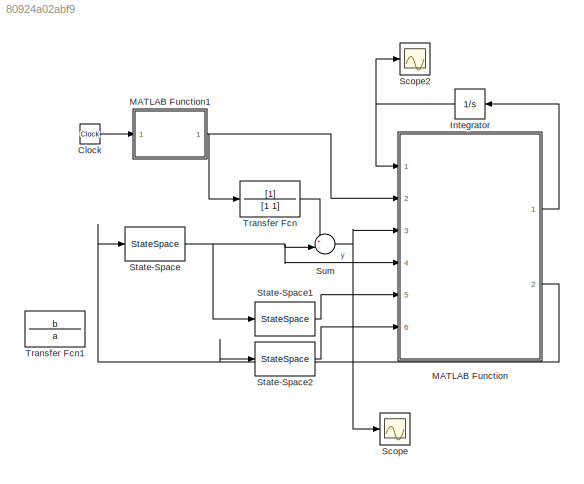
MODEL slx_80924a02abf9
KIND model
CONFIG AbsTol = auto
CONFIG EnableMultiTasking = off
CONFIG FixedStep = auto
CONFIG MaxStep = 0.001
CONFIG MinStep = auto
CONFIG RelTol = 1e-3
CONFIG SampleTimeConstraint = Unconstrained
CONFIG SolverName = VariableStepAuto
CONFIG StartTime = 0.0
CONFIG StopTime = 150
BLOCK [Clock] Clock
BLOCK [Integrator] Integrator
  InitialCondition = [0; 0; 0]
  NameLocation = top
  Ports = [1, 1]
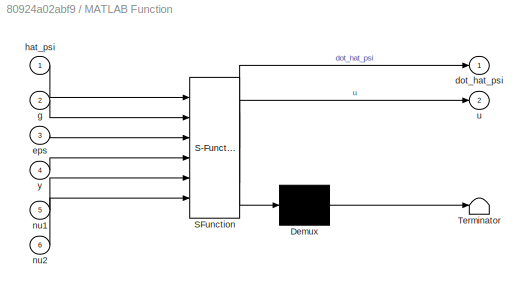
BLOCK [SubSystem] MATLAB Function
  ErrorFcn = Stateflow.Translate.translate
  PermitHierarchicalResolution = ExplicitOnly
  Ports = [6, 2]
  RequestExecContextInheritance = off
  SFBlockType = MATLAB Function
  TreatAsAtomicUnit = on
BLOCK [Demux] MATLAB Function/ Demux 
  Outputs = 1
  Ports = [1, 1]
BLOCK [S-Function] MATLAB Function/ SFunction 
  EnableBusSupport = on
  FunctionName = sf_sfun
  Parameters = b_0,gamma,k_0
  PortCounts = [6 3]
  Ports = [6, 3]
  SFcnIsStateOwnerBlock = off
  SFunctionDeploymentMode = off
  Tag = Stateflow S-Function 2
BLOCK [Terminator] MATLAB Function/ Terminator 
BLOCK [Outport] MATLAB Function/dot_hat_psi
BLOCK [Inport] MATLAB Function/eps
  Port = 3
BLOCK [Inport] MATLAB Function/g
  Port = 2
BLOCK [Inport] MATLAB Function/hat_psi
BLOCK [Inport] MATLAB Function/nu1
  Port = 5
BLOCK [Inport] MATLAB Function/nu2
  Port = 6
BLOCK [Outport] MATLAB Function/u
  Port = 2
BLOCK [Inport] MATLAB Function/y
  Port = 4
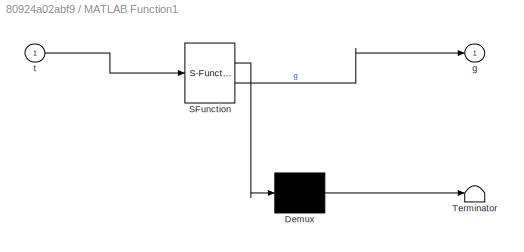
BLOCK [SubSystem] MATLAB Function1
  ErrorFcn = Stateflow.Translate.translate
  PermitHierarchicalResolution = ExplicitOnly
  Ports = [1, 1]
  RequestExecContextInheritance = off
  SFBlockType = MATLAB Function
  TreatAsAtomicUnit = on
BLOCK [Demux] MATLAB Function1/ Demux 
  Outputs = 1
  Ports = [1, 1]
BLOCK [S-Function] MATLAB Function1/ SFunction 
  EnableBusSupport = on
  FunctionName = sf_sfun
  PortCounts = [1 2]
  Ports = [1, 2]
  SFcnIsStateOwnerBlock = off
  SFunctionDeploymentMode = off
  Tag = Stateflow S-Function 1
BLOCK [Terminator] MATLAB Function1/ Terminator 
BLOCK [Outport] MATLAB Function1/g
BLOCK [Inport] MATLAB Function1/t
BLOCK [Scope] Scope
  Floating = off
  NumInputPorts = 1
  Ports = [1]
  ScopeSpecificationString = Simulink.scopes.TimeScopeBlockCfg('CurrentConfiguration', extmgr.ConfigurationSet(extmgr.Configuration('Core','General UI',true),extmgr.Configuration('Core','Source UI',true),extmgr.Configuration('Sources','WiredSimulink',true),extmgr.Configuration('Visuals','Time Domain',true,'SerializedDisplays',{struct('MinYLimReal','-3.47423','MaxYLimReal','5.42384','YLabelReal','','MinYLimMag','0.00000','MaxY...<+1423ch>
BLOCK [Scope] Scope2
  Floating = off
  NumInputPorts = 1
  Ports = [1]
  ScopeSpecificationString = Simulink.scopes.TimeScopeBlockCfg('CurrentConfiguration', extmgr.ConfigurationSet(extmgr.Configuration('Core','General UI',true),extmgr.Configuration('Core','Source UI',true),extmgr.Configuration('Sources','WiredSimulink',true,'DataLoggingVariableName','ScopeData2'),extmgr.Configuration('Visuals','Time Domain',true,'SerializedDisplays',{struct('MinYLimReal','-2529.76247','MaxYLimReal','2538.29434'...<+1469ch>
BLOCK [StateSpace] State-Space
  A = A
  B = B
  C = C
  D = 0
  InitialCondition = 0
  Ports = [1, 1]
BLOCK [StateSpace] State-Space1
  A = Lambda
  D = 0
  InitialCondition = 0
  Ports = [1, 1]
BLOCK [StateSpace] State-Space2
  A = Lambda
  D = 0
  InitialCondition = 0
  Ports = [1, 1]
BLOCK [Sum] Sum
  Inputs = +-|
  Ports = [2, 1]
BLOCK [TransferFcn] Transfer Fcn
  Denominator = [1 1]
BLOCK [TransferFcn] Transfer Fcn1
  Denominator = a
  Numerator = b
LINE Clock:1 -> MATLAB Function1:1
NET Integrator:1 -> MATLAB Function:1, Scope2:1
NET MATLAB Function1:1 -> MATLAB Function:2, Transfer Fcn:1
LINE MATLAB Function:1 -> Integrator:1
NET MATLAB Function:2 -> State-Space2:1, State-Space:1
LINE State-Space1:1 -> MATLAB Function:5
LINE State-Space2:1 -> MATLAB Function:6
NET State-Space:1 -> MATLAB Function:4, State-Space1:1, Sum:2
NET Sum:1 -> MATLAB Function:3, Scope:1
LINE Transfer Fcn:1 -> Sum:1
note: NET lines group one-source signal fan-out (src -> all destinations, sorted); 1:1 wires keep LINE
CHART MATLAB Function1 states=1 transitions=1
  STATE_LABEL 'eML_blk_kernel()'
  STATE_LABEL 'SCRIPT:\nfunction g = fcn(t)\n\ng = sin(t) + 2;\n'
CHART MATLAB Function states=1 transitions=1
  STATE_LABEL 'eML_blk_kernel()'
  STATE_LABEL "SCRIPT:\nfunction [dot_hat_psi, u] = fcn(hat_psi, g, eps, y, nu1, nu2, gamma, b_0, k_0)\n\nomega = [nu1 nu2 y]';\ndot_hat_psi = -gamma*omega*eps;\nu = 1/b_0 * (-hat_psi'*omega + k_0*g);\n"
CHART  states=0 transitions=0
CHART  states=0 transitions=0
